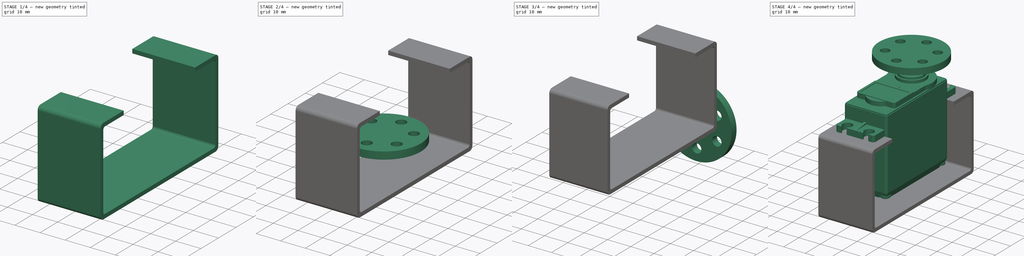
[diagram: build sequence overview — one tinted view per stage of 4, left to right]
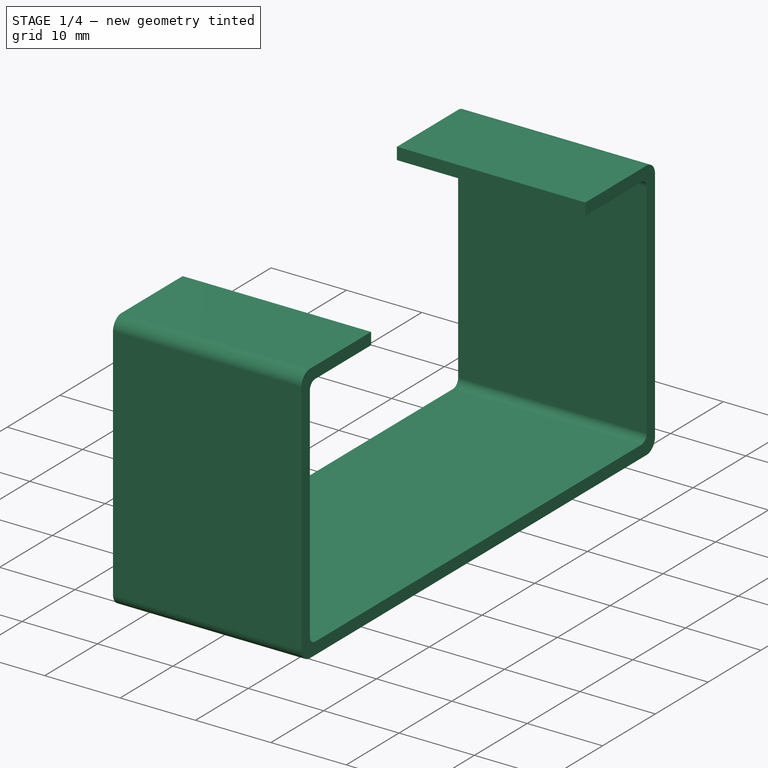
[diagram: stage 1 of 4 — iso view after this stage's code; geometry added in this stage tinted green]
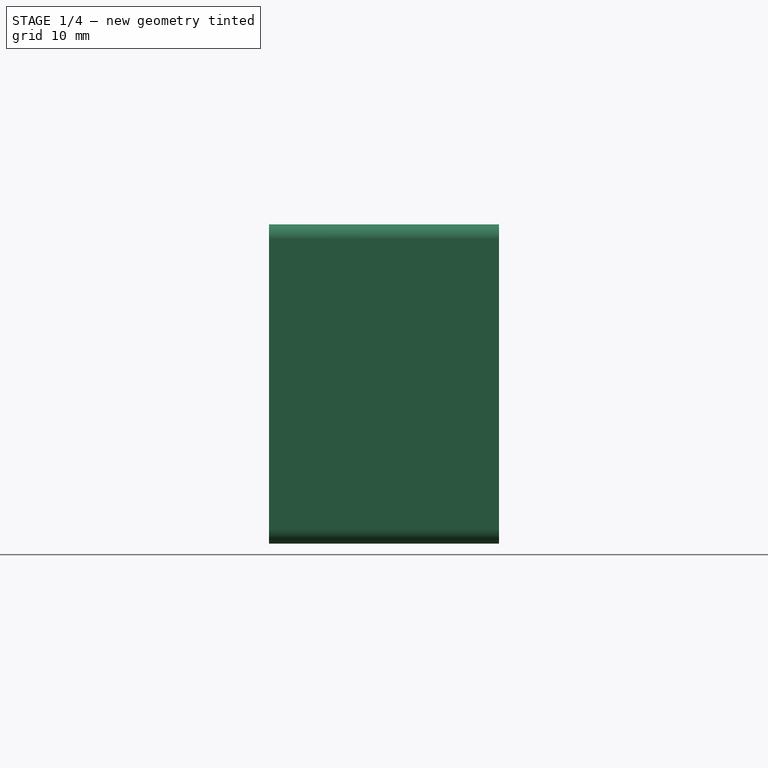
[diagram: stage 1 of 4 — front view after this stage's code; geometry added in this stage tinted green]
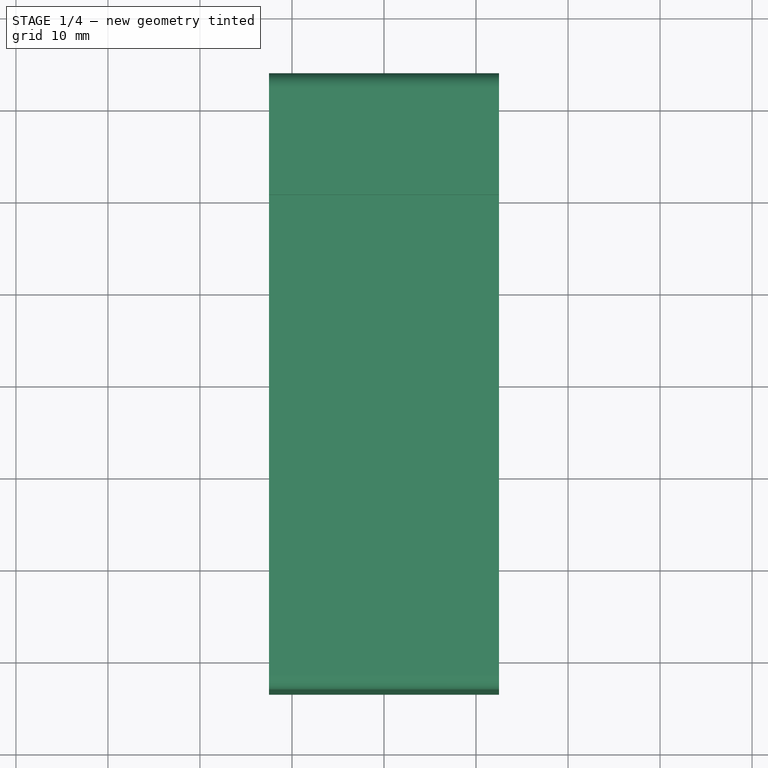
[diagram: stage 1 of 4 — top view after this stage's code; geometry added in this stage tinted green]
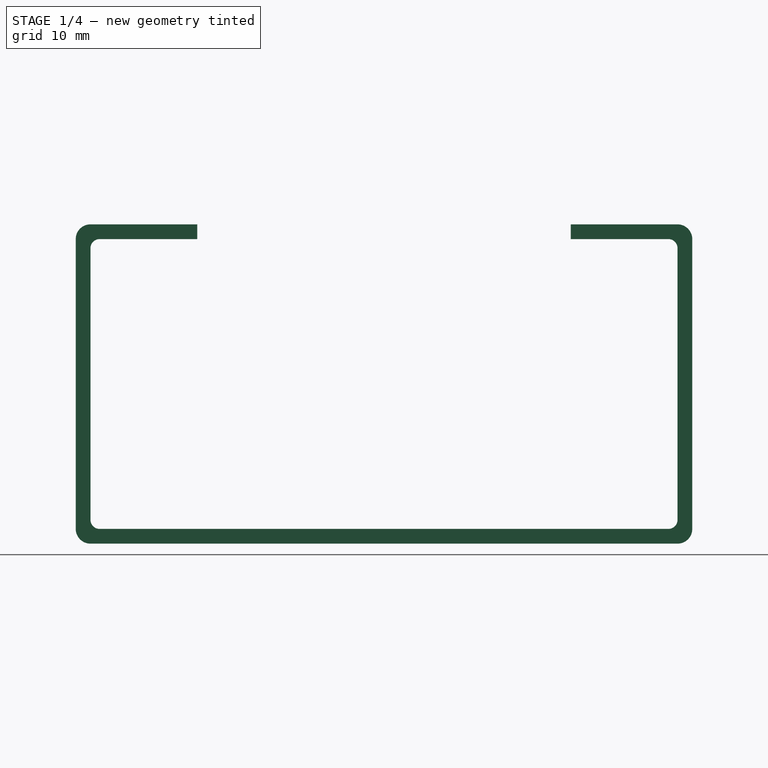
[diagram: stage 1 of 4 — right view after this stage's code; geometry added in this stage tinted green]
FCSTD DOCUMENT  (FreeCAD 0.17R7965 (Git))
Label: ArbotMotorAssembly
License: All rights reserved
LicenseURL: http://en.wikipedia.org/wiki/All_rights_reserved
objects: Part::Feature×9, Part::MultiFuse×4, Sketcher::SketchObject×4, Part::Extrusion×4, Part::Fillet×2, Part::FeaturePython×1, Part::Cut×1, PartDesign::Body×1
note: 26 computed .brp shape members not serialized (recipe doc carries the construction recipe); baked Part::Feature solids carry a one-line shape summary decoded from their .brp

FEATURE [Sketcher::SketchObject] Sketch003
  MapMode = 5
  Placement = pos=(0,0,0) rot=(0.57735,0.57735,0.57735;2.0944rad)
  Support = -> [YZ_Plane]
  sketch-geometry (12):
    g0: LineSegment StartX=-20.3 StartY=27 StartZ=0 EndX=-33.5 EndY=27 EndZ=0
    g1: LineSegment StartX=-33.5 StartY=27 StartZ=0 EndX=-33.5 EndY=-7.7 EndZ=0
    g2: LineSegment StartX=-33.5 StartY=-7.7 StartZ=0 EndX=33.5 EndY=-7.7 EndZ=0
    g3: LineSegment StartX=33.5 StartY=-7.7 StartZ=0 EndX=33.5 EndY=27 EndZ=0
    g4: LineSegment StartX=33.5 StartY=27 StartZ=0 EndX=20.3 EndY=27 EndZ=0
    g5: LineSegment StartX=20.3 StartY=27 StartZ=0 EndX=20.3 EndY=25.4 EndZ=0
    g6: LineSegment StartX=20.3 StartY=25.4 StartZ=0 EndX=31.9 EndY=25.4 EndZ=0
    g7: LineSegment StartX=31.9 StartY=25.4 StartZ=0 EndX=31.9 EndY=-6.1 EndZ=0
    g8: LineSegment StartX=31.9 StartY=-6.1 StartZ=0 EndX=-31.9 EndY=-6.1 EndZ=0
    g9: LineSegment StartX=-31.9 StartY=-6.1 StartZ=0 EndX=-31.9 EndY=25.4 EndZ=0
    g10: LineSegment StartX=-31.9 StartY=25.4 StartZ=0 EndX=-20.3 EndY=25.4 EndZ=0
    g11: LineSegment StartX=-20.3 StartY=25.4 StartZ=0 EndX=-20.3 EndY=27 EndZ=0
  constraints (35):
    c: Horizontal(g0)
    c: Coincident(g0,g1)
    c: Vertical(g1)
    c: Coincident(g1,g2)
    c: Horizontal(g2)
    c: Coincident(g2,g3)
    c: Vertical(g3)
    c: Coincident(g3,g4)
    c: Horizontal(g4)
    c: Coincident(g4,g5)
    c: Coincident(g5,g6)
    c: Horizontal(g6)
    c: Coincident(g6,g7)
    c: Vertical(g7)
    c: Coincident(g7,g8)
    c: Horizontal(g8)
    c: Coincident(g8,g9)
    c: Vertical(g9)
    c: Coincident(g9,g10)
    c: Horizontal(g10)
    c: Coincident(g10,g11)
    c: Coincident(g11,g0)
    c: Vertical(g11)
    c: Vertical(g5)
    c: DistanceY(g-1,g0) = 27
    c: DistanceX(g-2,g0) = -20.3
    c: Distance(g10) = 11.6
    c: DistanceY(g4,g0) = 0
    c: Symmetric(g5,g10,g-2)
    c: Distance(g9) = 31.5
    c: Symmetric(g9,g6,g-2)
    c: Symmetric(g3,g0,g-2)
    c: Distance(g8,g2) = 1.6
    c: Distance(g9,g1) = 1.6
    c: Distance(g9,g0) = 1.6
FEATURE [PartDesign::Body] Body
  Model = -> [Sketch003]
  Origin = -> BodyOrigin
FEATURE [Part::Extrusion] Extrude004
  Base = -> Sketch003
  Dir = (25,0,0)
  Placement = pos=(-12.5,0,0) rot=(0,0,1;0rad)
  Solid = true
FEATURE [Part::Fillet] Fillet
  Base = -> Extrude004
  Edges = 4 edges r=1.6: [Edge2,Edge5,Edge8,Edge11]
FEATURE [Part::Fillet] Fillet001  label="ServoBracket"
  Base = -> Fillet
  Edges = 4 edges r=1: [Edge38,Edge40,Edge42,Edge44]
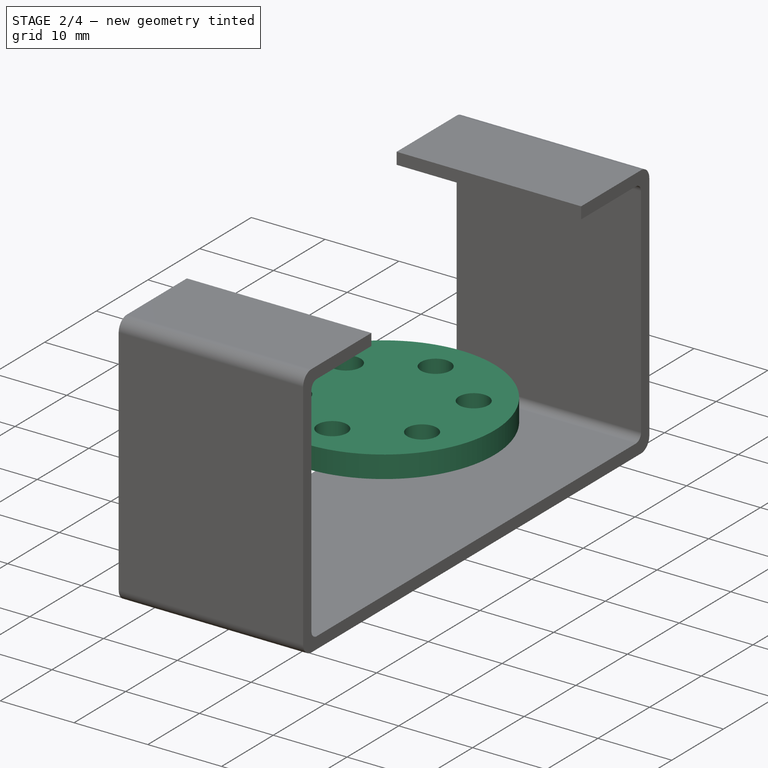
[diagram: stage 2 of 4 — iso view after this stage's code; geometry added in this stage tinted green]
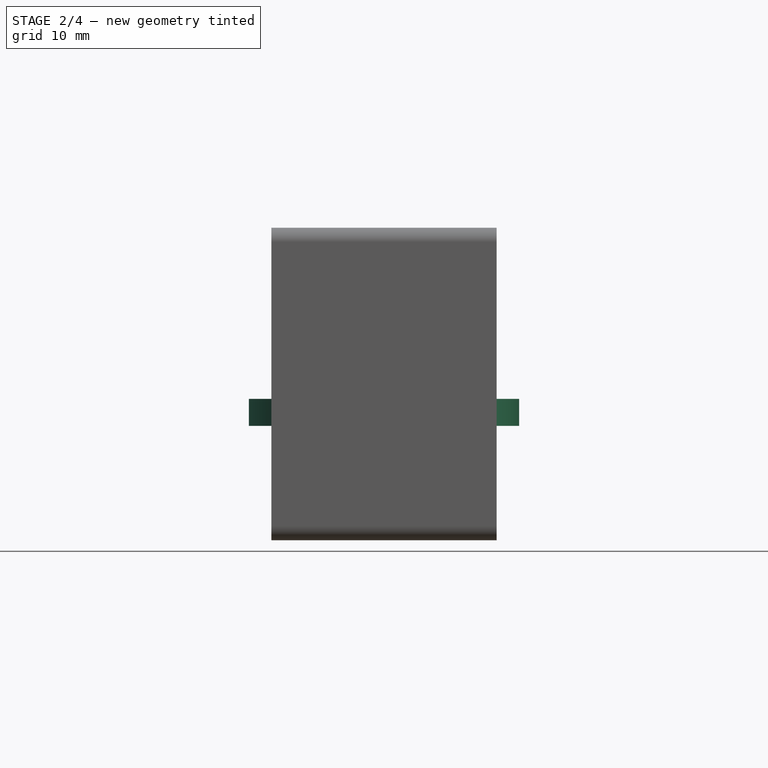
[diagram: stage 2 of 4 — front view after this stage's code; geometry added in this stage tinted green]
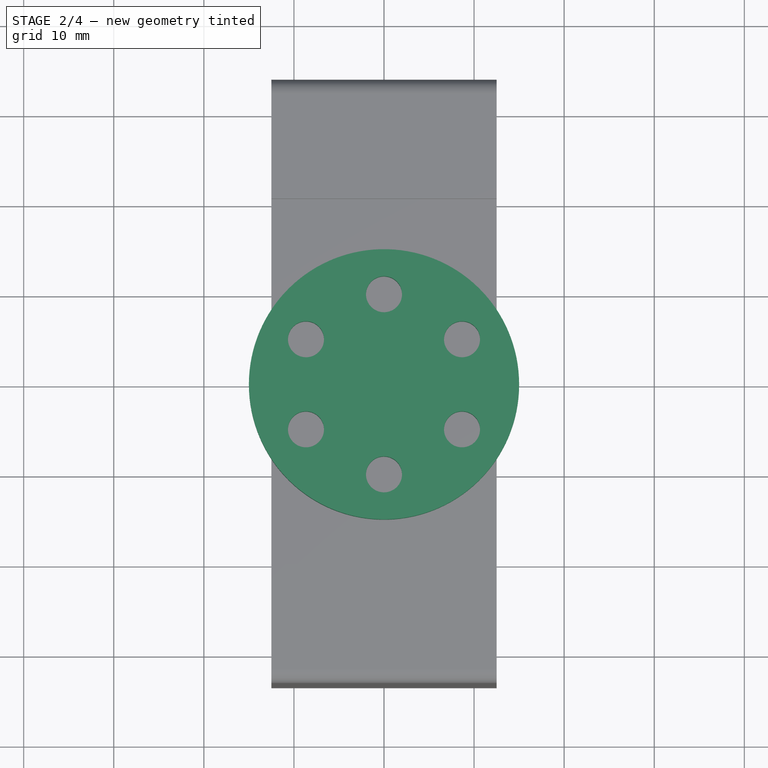
[diagram: stage 2 of 4 — top view after this stage's code; geometry added in this stage tinted green]
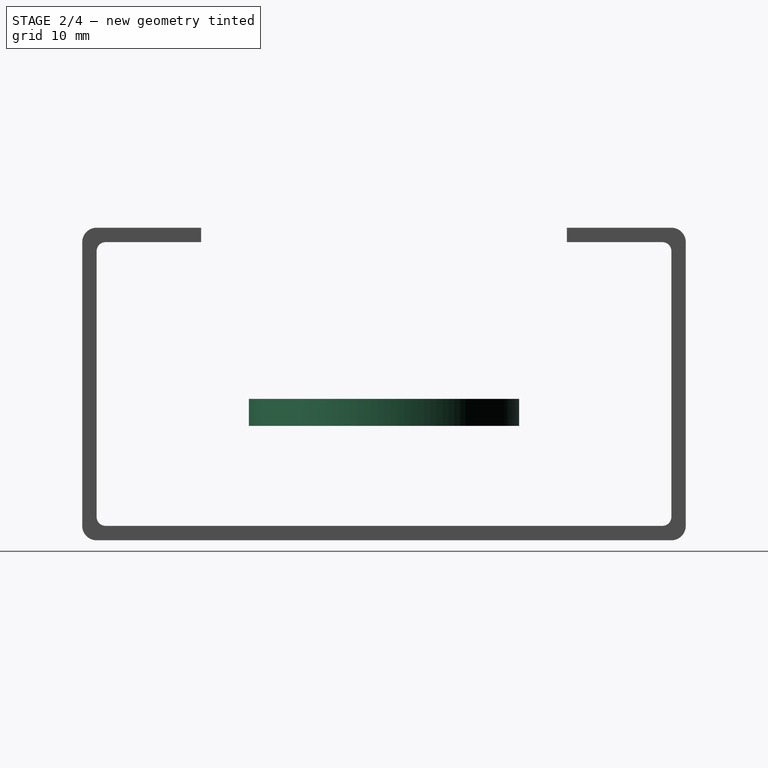
[diagram: stage 2 of 4 — right view after this stage's code; geometry added in this stage tinted green]
FEATURE [Sketcher::SketchObject] Sketch001
  MapMode = 5
  Support = -> [XY_Plane]
  sketch-geometry (1):
    g0: Circle CenterX=0 CenterY=0 CenterZ=0 NormalX=0 NormalY=0 NormalZ=1 Radius=15
  constraints (2):
    c: Coincident(g0,g-1)
    c: Radius(g0) = 15
FEATURE [Part::Extrusion] Extrude002
  Base = -> Sketch001
  Dir = (0,0,3)
  Placement = pos=(0,0,5) rot=(0,0,1;0rad)
  Solid = true
FEATURE [Sketcher::SketchObject] Sketch002
  MapMode = 5
  Support = -> [XY_Plane]
  sketch-geometry (1):
    g0: Circle CenterX=0 CenterY=-10 CenterZ=0 NormalX=0 NormalY=0 NormalZ=1 Radius=2
  constraints (3):
    c: Radius(g0) = 2
    c: DistanceY(g-1,g0) = -10
    c: PointOnObject(g0,g-2)
FEATURE [Part::FeaturePython] Array  # Draft array (typed FeaturePython)
  Angle = 360
  ArrayType = 1
  Axis = (0,0,1)
  Base = -> Sketch002
  Center = (0,0,0)
  Fuse = false
  IntervalAxis = (0,0,0)
  IntervalX = (1,0,0)
  IntervalY = (0,1,0)
  IntervalZ = (0,0,0)
  NumberPolar = 6
  NumberX = 2
  NumberY = 2
  NumberZ = 1
FEATURE [Part::Extrusion] Extrude
  Base = -> Array
  Dir = (0,0,30)
  Solid = true
FEATURE [Part::Cut] Cut
  Base = -> Extrude002
  Tool = -> Extrude
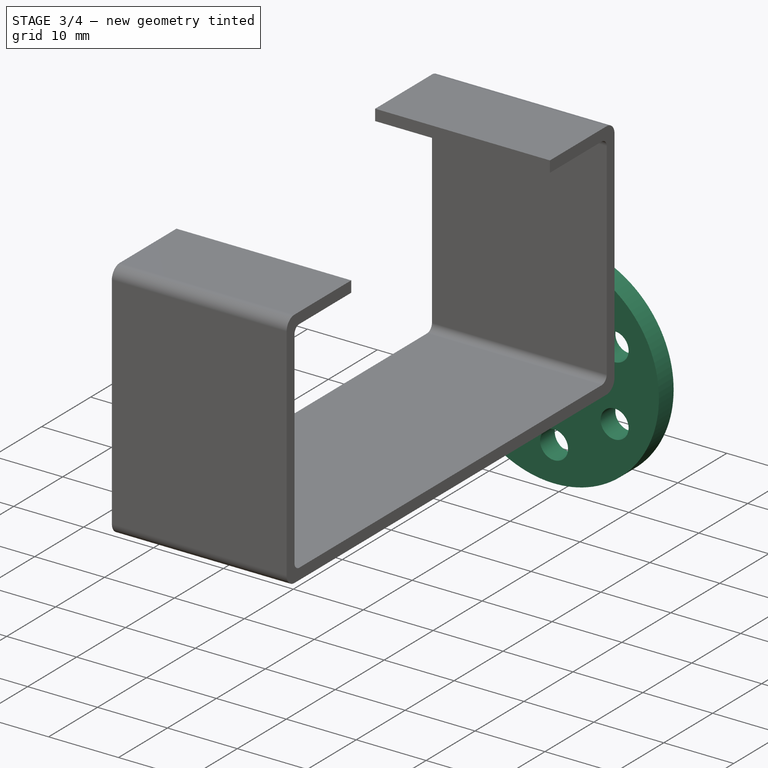
[diagram: stage 3 of 4 — iso view after this stage's code; geometry added in this stage tinted green]
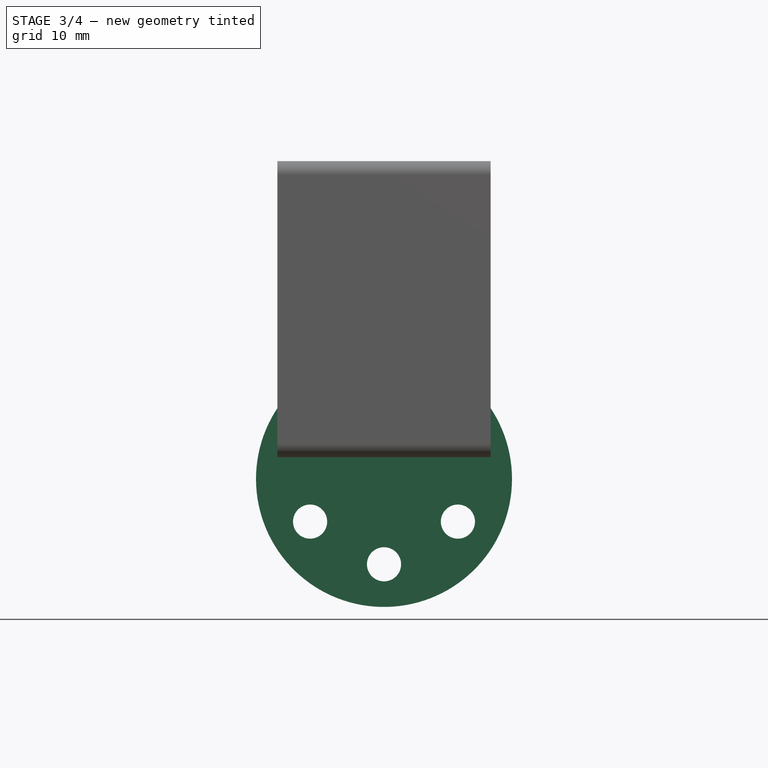
[diagram: stage 3 of 4 — front view after this stage's code; geometry added in this stage tinted green]
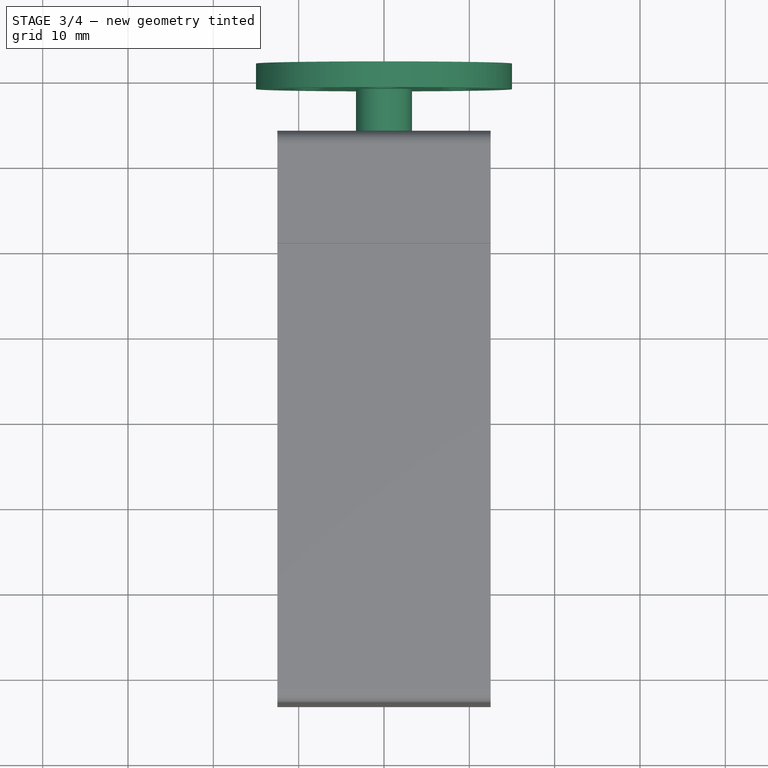
[diagram: stage 3 of 4 — top view after this stage's code; geometry added in this stage tinted green]
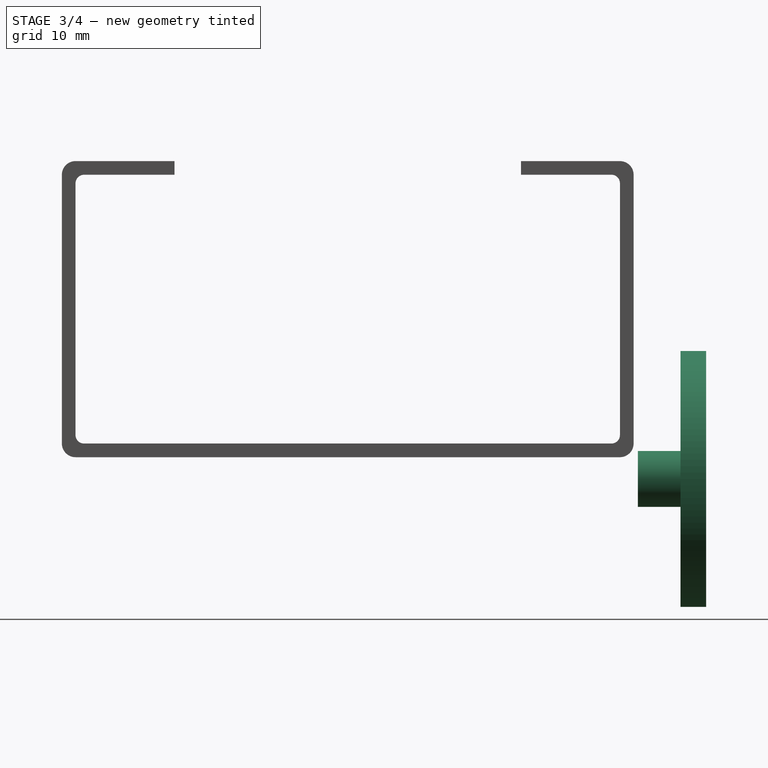
[diagram: stage 3 of 4 — right view after this stage's code; geometry added in this stage tinted green]
FEATURE [Sketcher::SketchObject] Sketch
  MapMode = 5
  Support = -> [XY_Plane]
  sketch-geometry (1):
    g0: Circle CenterX=0 CenterY=0 CenterZ=0 NormalX=0 NormalY=0 NormalZ=1 Radius=3.27463
  constraints (1):
    c: Coincident(g0,g-1)
FEATURE [Part::Extrusion] Extrude003
  Base = -> Sketch
  Dir = (0,0,5)
  Solid = true
FEATURE [Part::MultiFuse] Fusion001  label="ServoHorn"
  Placement = pos=(0,34,-10.25) rot=(-1,0,0;1.5708rad)
  Shapes = -> [Cut,Extrude003]
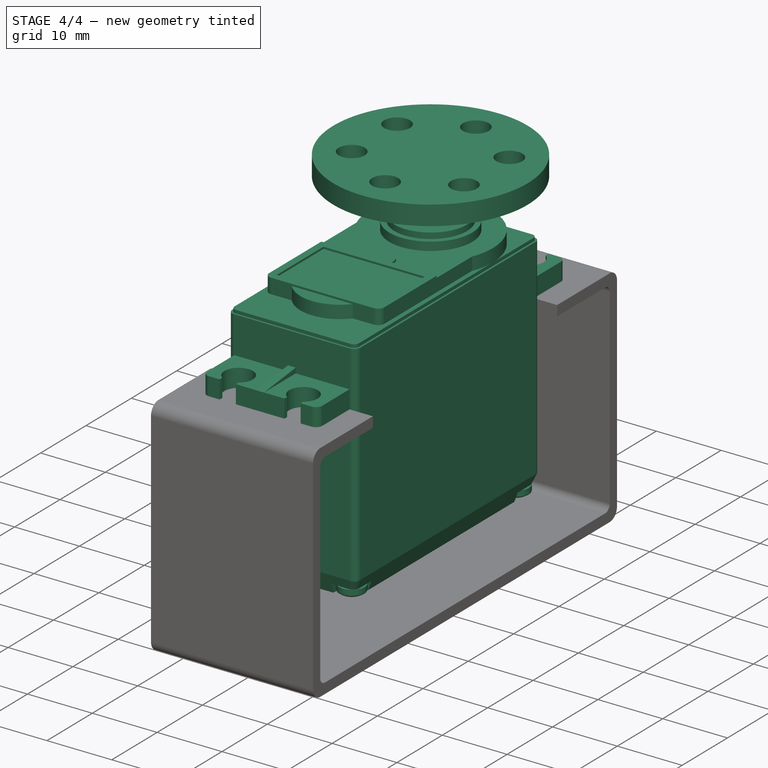
[diagram: stage 4 of 4 — iso view after this stage's code; geometry added in this stage tinted green]
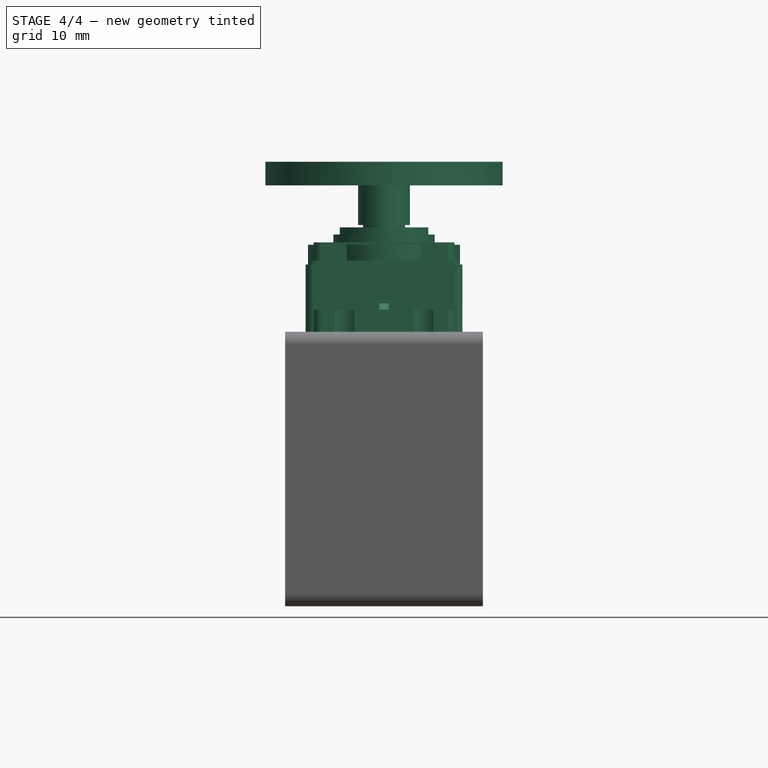
[diagram: stage 4 of 4 — front view after this stage's code; geometry added in this stage tinted green]
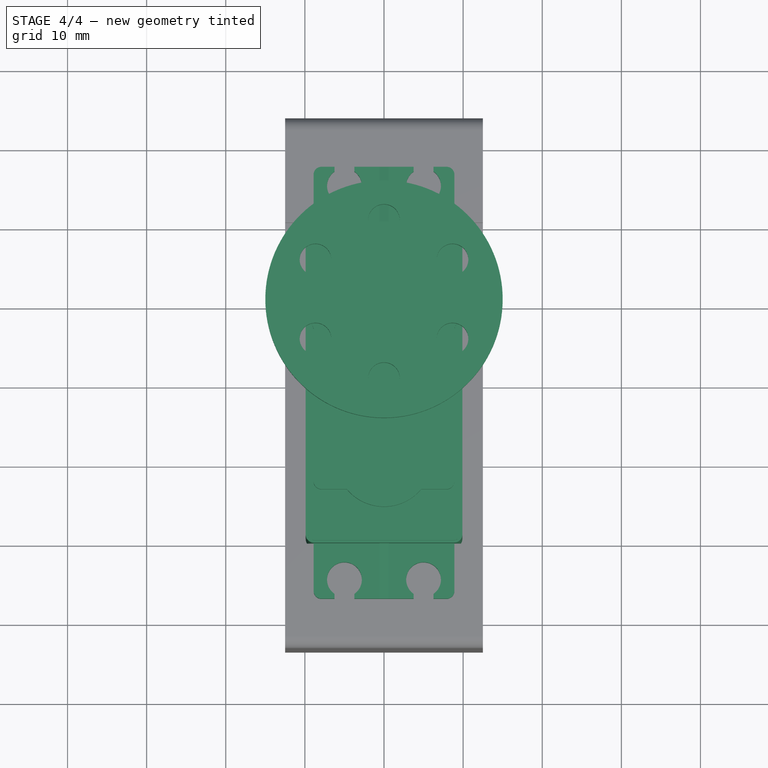
[diagram: stage 4 of 4 — top view after this stage's code; geometry added in this stage tinted green]
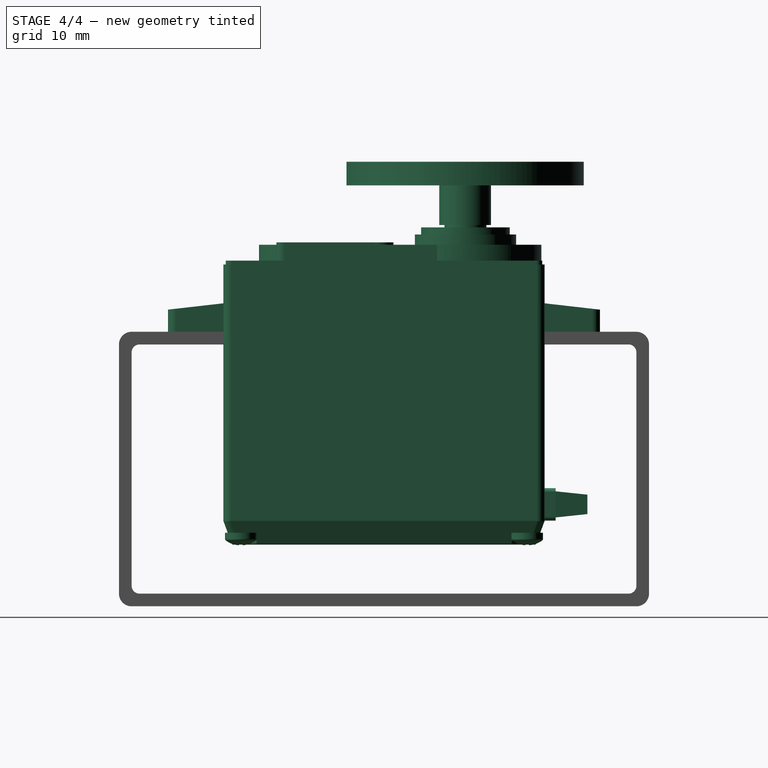
[diagram: stage 4 of 4 — right view after this stage's code; geometry added in this stage tinted green]
FEATURE [Part::Feature] Part__Feature  label="TOWER PRO MG-995, ANALOG SERVO, BODY, BOTTOM"
  shape: bbox 19.8 x 6.4 x 40.6 mm, 74 faces (baked)
FEATURE [Part::Feature] Part__Feature001  label="TOWER PRO MG-995, ANALOG SERVO, BODY, MIDDLE"
  Placement = pos=(0,10.25,0) rot=(0,0,1;0rad)
  shape: bbox 19.8 x 20.5 x 40.6 mm, 10 faces (baked)
FEATURE [Part::Feature] Part__Feature002  label="TOWER PRO MG-995, ANALOG SERVO, BODY, TOP"
  Placement = pos=(0,20.5,0) rot=(0,0,1;0rad)
  shape: bbox 19.8 x 13.2 x 54.6 mm, 91 faces (baked)
FEATURE [Part::Feature] Part__Feature003  label="TOWER PRO MG-995, ANALOG SERVO, CONNECTOR"
  Placement = pos=(0,-1.31473,-20.3) rot=(0,0,1;0rad)
  shape: bbox 6.8 x 4.1 x 5.4 mm, 15 faces (baked)
FEATURE [Part::Feature] Part__Feature007  label="TOWER PRO MG-995, ANALOG SERVO, SHAFT"
  Placement = pos=(0,20.5,-10.3) rot=(0,1,0;3.13671rad)
  shape: bbox 5.79 x 17.5 x 5.8 mm, 191 faces (baked)
FEATURE [Part::Feature] Part__Feature009  label="pan cross head_am_B18.6.7M - M2 x 0.4 x 10 Type I Cross Recessed PHMS --10N"
  Placement = pos=(-7.7,-6.5,18.1) rot=(0,0,1;1.5708rad)
  shape: bbox 4.33 x 11.6 x 4.33 mm, 23 faces (baked)
FEATURE [Part::Feature] Part__Feature010  label="pan cross head_am_B18.6.7M - M2 x 0.4 x 10 Type I Cross Recessed PHMS --10N001"
  Placement = pos=(7.7,-6.5,18.1) rot=(0,0,1;1.5708rad)
  shape: bbox 4.33 x 11.6 x 4.33 mm, 23 faces (baked)
FEATURE [Part::Feature] Part__Feature011  label="pan cross head_am_B18.6.7M - M2 x 0.4 x 10 Type I Cross Recessed PHMS --10N002"
  Placement = pos=(7.7,-6.5,-18.1) rot=(0,0,1;1.5708rad)
  shape: bbox 4.33 x 11.6 x 4.33 mm, 23 faces (baked)
FEATURE [Part::Feature] Part__Feature012  label="pan cross head_am_B18.6.7M - M2 x 0.4 x 10 Type I Cross Recessed PHMS --10N003"
  Placement = pos=(-7.7,-6.5,-18.1) rot=(0,0,1;1.5708rad)
  shape: bbox 4.33 x 11.6 x 4.33 mm, 23 faces (baked)
FEATURE [Part::MultiFuse] Fusion  label="ServoMG995"
  Shapes = -> [Part__Feature,Part__Feature007,Part__Feature002,Part__Feature011,Part__Feature009,Part__Feature010,Part__Feature012,Part__Feature003,Part__Feature001]
FEATURE [Part::MultiFuse] Fusion002  label="ServoWithHorn"
  Placement = pos=(0,0,6.5) rot=(1,0,0;1.5708rad)
  Shapes = -> [Fusion,Fusion001]
FEATURE [Part::MultiFuse] Fusion003  label="Servo+Horn+Bracket"
  Shapes = -> [Fusion002,Fillet001]
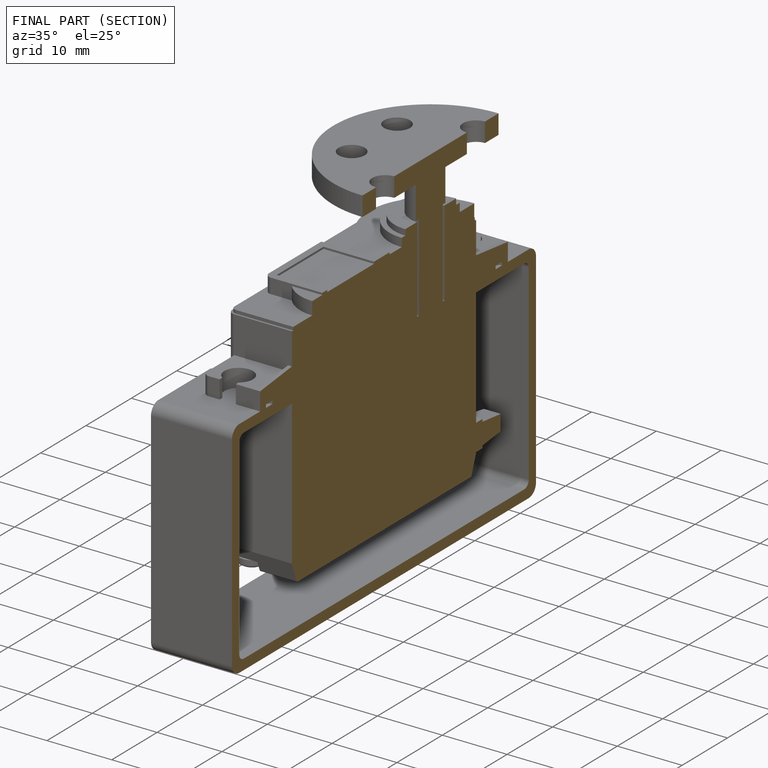
[diagram: finished part — half-section view (interior)]
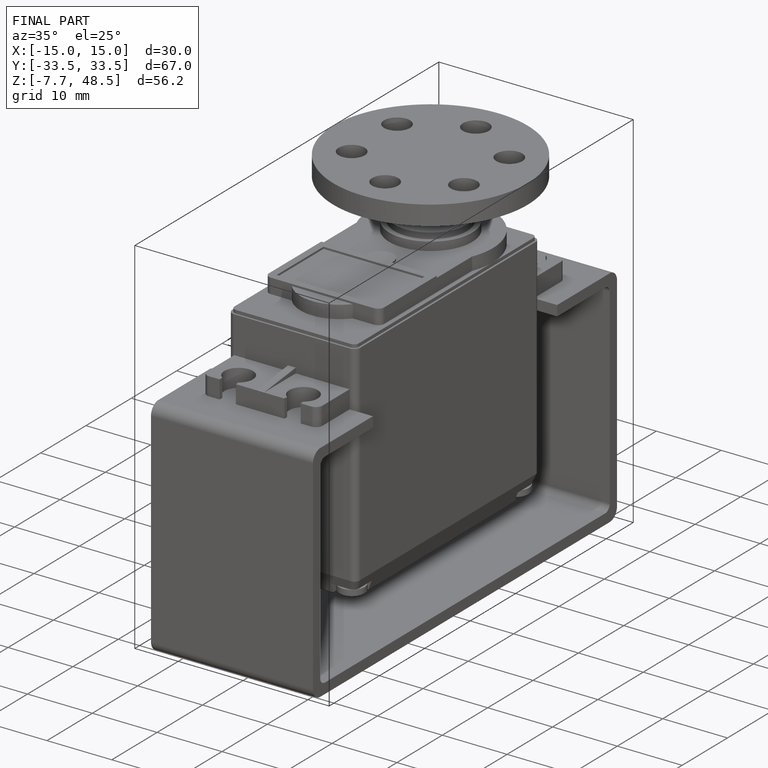
[diagram: finished part — iso view with bounding-box wireframe]
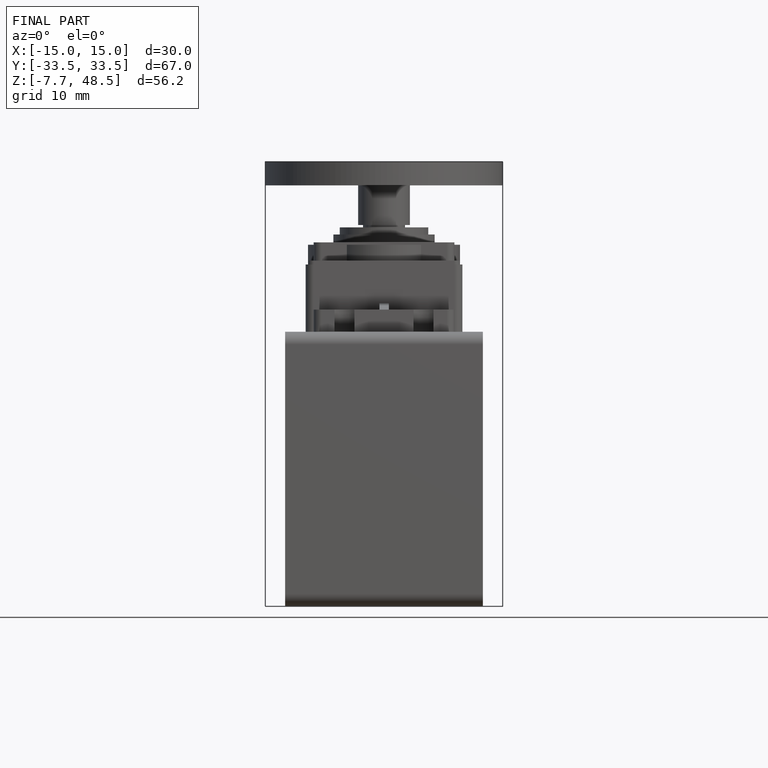
[diagram: finished part — front view with bounding-box wireframe]
